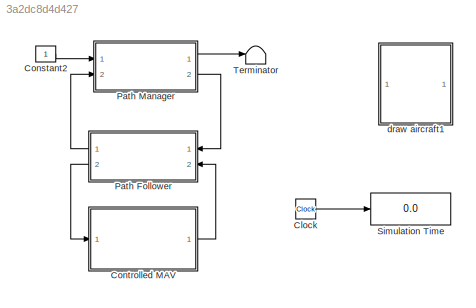
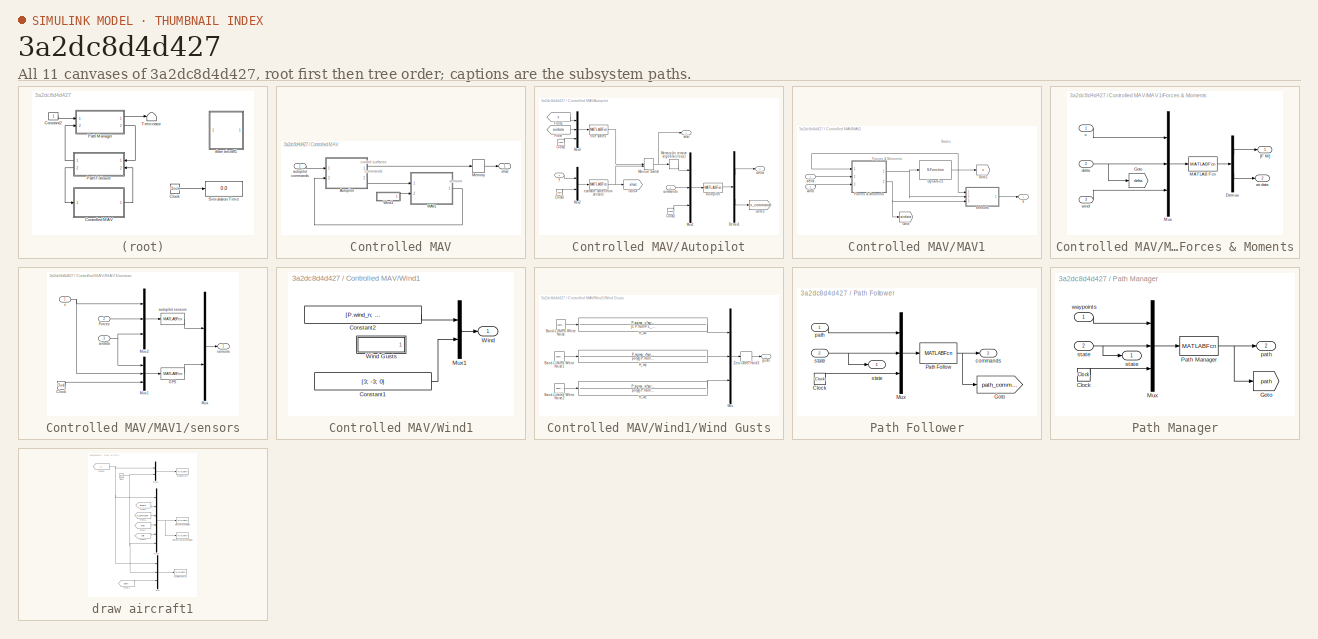
[diagram: thumbnail index - all 11 canvases of the model, root first then tree order]
MODEL slx_3a2dc8d4d427
KIND model
CONFIG AbsTol = auto
CONFIG EnableMultiTasking = on
CONFIG FixedStep = auto
CONFIG InitFcn = param_chap10
CONFIG MaxStep = auto
CONFIG MinStep = auto
CONFIG RelTol = 1e-3
CONFIG SampleTimeConstraint = Unconstrained
CONFIG Solver = ode15s
CONFIG SolverName = ode15s
CONFIG StartTime = 0.0
CONFIG StopTime = 400
BLOCK [Clock] Clock
BLOCK [Constant] Constant2
BLOCK [SubSystem] Controlled MAV
  Ports = [1, 1]
  RequestExecContextInheritance = off
  Variant = off
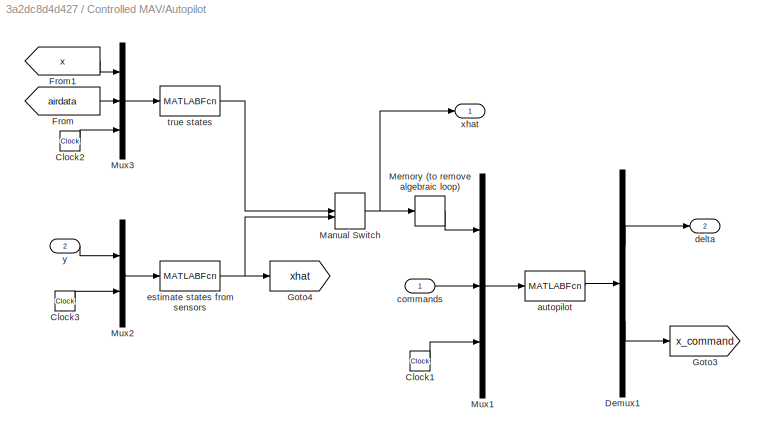
BLOCK [SubSystem] Controlled MAV/Autopilot
  Ports = [2, 2]
  RequestExecContextInheritance = off
  Variant = off
BLOCK [Clock] Controlled MAV/Autopilot/Clock1
BLOCK [Clock] Controlled MAV/Autopilot/Clock2
BLOCK [Clock] Controlled MAV/Autopilot/Clock3
BLOCK [Demux] Controlled MAV/Autopilot/Demux1
  DisplayOption = bar
  Outputs = [4;12]
  Ports = [1, 2]
BLOCK [From] Controlled MAV/Autopilot/From
  GotoTag = airdata
  TagVisibility = global
BLOCK [From] Controlled MAV/Autopilot/From1
  GotoTag = x
  TagVisibility = global
BLOCK [Goto] Controlled MAV/Autopilot/Goto3
  GotoTag = x_command
  TagVisibility = global
BLOCK [Goto] Controlled MAV/Autopilot/Goto4
  GotoTag = xhat
  TagVisibility = global
BLOCK [ManualSwitch] Controlled MAV/Autopilot/Manual Switch
BLOCK [Memory] Controlled MAV/Autopilot/Memory (to remove algebraic loop)
BLOCK [Mux] Controlled MAV/Autopilot/Mux1
  DisplayOption = bar
  Inputs = 3
  Ports = [3, 1]
BLOCK [Mux] Controlled MAV/Autopilot/Mux2
  DisplayOption = bar
  Inputs = 2
  Ports = [2, 1]
BLOCK [Mux] Controlled MAV/Autopilot/Mux3
  DisplayOption = bar
  Inputs = 3
  Ports = [3, 1]
BLOCK [MATLABFcn] Controlled MAV/Autopilot/autopilot
  MATLABFcn = autopilot(u,P)
  OutputDimensions = 4+12
  Ports = [1, 1]
  SampleTime = P.Ts
BLOCK [Inport] Controlled MAV/Autopilot/commands
  IconDisplay = Port number
BLOCK [Outport] Controlled MAV/Autopilot/delta
  IconDisplay = Port number
  Port = 2
BLOCK [MATLABFcn] Controlled MAV/Autopilot/estimate states from sensors
  MATLABFcn = estimate_states(u,P)
  OutputDimensions = 19
  Ports = [1, 1]
  SampleTime = P.Ts
BLOCK [MATLABFcn] Controlled MAV/Autopilot/true states
  MATLABFcn = true_states(u,P)
  OutputDimensions = 19
  Ports = [1, 1]
  SampleTime = P.Ts
BLOCK [Outport] Controlled MAV/Autopilot/xhat
  IconDisplay = Port number
BLOCK [Inport] Controlled MAV/Autopilot/y
  IconDisplay = Port number
  Port = 2
BLOCK [SubSystem] Controlled MAV/MAV1
  Ports = [2, 1]
  RequestExecContextInheritance = off
  Variant = off
BLOCK [S-Function] Controlled MAV/MAV1/Dynamics
  EnableBusSupport = off
  FunctionName = mav_dynamics
  Parameters = P
  Ports = [1, 1]
  SFcnIsStateOwnerBlock = off
  SFunctionDeploymentMode = off
BLOCK [SubSystem] Controlled MAV/MAV1/Forces & Moments
  Ports = [3, 2]
  RequestExecContextInheritance = off
  Variant = off
BLOCK [Demux] Controlled MAV/MAV1/Forces & Moments/Demux
  DisplayOption = bar
  Outputs = [6;6]
  Ports = [1, 2]
BLOCK [Goto] Controlled MAV/MAV1/Forces & Moments/Goto
  GotoTag = delta
  TagVisibility = global
BLOCK [MATLABFcn] Controlled MAV/MAV1/Forces & Moments/MATLAB Fcn
  MATLABFcn = forces_moments(u(1:12),u(13:16),u(17:22),P)
  OutputDimensions = 12
  Ports = [1, 1]
BLOCK [Mux] Controlled MAV/MAV1/Forces & Moments/Mux
  DisplayOption = bar
  Inputs = 3
  Ports = [3, 1]
BLOCK [Outport] Controlled MAV/MAV1/Forces & Moments/[F M]
  IconDisplay = Port number
BLOCK [Outport] Controlled MAV/MAV1/Forces & Moments/air data
  IconDisplay = Port number
  Port = 2
BLOCK [Inport] Controlled MAV/MAV1/Forces & Moments/delta
  IconDisplay = Port number
  Port = 2
BLOCK [Inport] Controlled MAV/MAV1/Forces & Moments/wind
  IconDisplay = Port number
  Port = 3
BLOCK [Inport] Controlled MAV/MAV1/Forces & Moments/x
  IconDisplay = Port number
BLOCK [Goto] Controlled MAV/MAV1/Goto
  GotoTag = airdata
  TagVisibility = global
BLOCK [Goto] Controlled MAV/MAV1/Goto1
  GotoTag = x
  TagVisibility = global
BLOCK [Inport] Controlled MAV/MAV1/delta
  IconDisplay = Port number
BLOCK [SubSystem] Controlled MAV/MAV1/sensors
  Ports = [3, 1]
  RequestExecContextInheritance = off
  Variant = off
BLOCK [Clock] Controlled MAV/MAV1/sensors/Clock
BLOCK [Inport] Controlled MAV/MAV1/sensors/Forces
  IconDisplay = Port number
  Port = 2
BLOCK [MATLABFcn] Controlled MAV/MAV1/sensors/GPS
  MATLABFcn = gps(u,P)
  OutputDimensions = 5
  Ports = [1, 1]
  SampleTime = P.Ts_gps
BLOCK [Mux] Controlled MAV/MAV1/sensors/Mux
  DisplayOption = bar
  Inputs = 2
  Ports = [2, 1]
BLOCK [Mux] Controlled MAV/MAV1/sensors/Mux1
  DisplayOption = bar
  Inputs = 3
  Ports = [3, 1]
BLOCK [Mux] Controlled MAV/MAV1/sensors/Mux2
  DisplayOption = bar
  Inputs = 3
  Ports = [3, 1]
BLOCK [Inport] Controlled MAV/MAV1/sensors/airdata
  IconDisplay = Port number
  Port = 3
BLOCK [MATLABFcn] Controlled MAV/MAV1/sensors/autopilot sensors
  MATLABFcn = sensors(u,P)
  OutputDimensions = 8
  Ports = [1, 1]
  SampleTime = P.Ts
BLOCK [Outport] Controlled MAV/MAV1/sensors/sensors
  IconDisplay = Port number
BLOCK [Inport] Controlled MAV/MAV1/sensors/x
  IconDisplay = Port number
BLOCK [Inport] Controlled MAV/MAV1/wind
  IconDisplay = Port number
  Port = 2
BLOCK [Outport] Controlled MAV/MAV1/y
  IconDisplay = Port number
BLOCK [Memory] Controlled MAV/Memory
BLOCK [SubSystem] Controlled MAV/Wind1
  Ports = [0, 1]
  RequestExecContextInheritance = off
  Variant = off
BLOCK [Constant] Controlled MAV/Wind1/Constant1
  Value = [3; -3; 0]
BLOCK [Constant] Controlled MAV/Wind1/Constant2
  Value = [P.wind_n; P.wind_e; P.wind_d]
BLOCK [Mux] Controlled MAV/Wind1/Mux1
  DisplayOption = bar
  Inputs = 2
  Ports = [2, 1]
BLOCK [Outport] Controlled MAV/Wind1/Wind
  IconDisplay = Port number
BLOCK [SubSystem] Controlled MAV/Wind1/Wind Gusts
  Ports = [0, 1]
  RequestExecContextInheritance = off
  Variant = off
BLOCK [Reference] Controlled MAV/Wind1/Wind Gusts/Band-Limited White Noise  REF=simulink/Sources/Band-Limited
White Noise
  Ports = [0, 1]
  SourceBlock = simulink/Sources/Band-Limited\nWhite Noise
  SourceProductBaseCode = SL
  SourceProductName = Simulink
  SourceType = Band-Limited White Noise.
BLOCK [Reference] Controlled MAV/Wind1/Wind Gusts/Band-Limited White Noise1  REF=simulink/Sources/Band-Limited
White Noise
  Ports = [0, 1]
  SourceBlock = simulink/Sources/Band-Limited\nWhite Noise
  SourceProductBaseCode = SL
  SourceProductName = Simulink
  SourceType = Band-Limited White Noise.
BLOCK [Reference] Controlled MAV/Wind1/Wind Gusts/Band-Limited White Noise2  REF=simulink/Sources/Band-Limited
White Noise
  Ports = [0, 1]
  SourceBlock = simulink/Sources/Band-Limited\nWhite Noise
  SourceProductBaseCode = SL
  SourceProductName = Simulink
  SourceType = Band-Limited White Noise.
BLOCK [TransferFcn] Controlled MAV/Wind1/Wind Gusts/H_wx
  Denominator = [1 P.Va0/P.L_u]
  Numerator = P.sigma_u*sqrt(2*P.Va0/P.L_u)
BLOCK [TransferFcn] Controlled MAV/Wind1/Wind Gusts/H_wy
  Denominator = poly([-P.Va0/P.L_v, -P.Va0/P.L_v])
  Numerator = P.sigma_v*sqrt(3*P.Va0/P.L_v)*[0, 1, P.Va0/sqrt(3)/P.L_v]
BLOCK [TransferFcn] Controlled MAV/Wind1/Wind Gusts/H_wz
  Denominator = poly([-P.Va0/P.L_w, -P.Va0/P.L_w])
  Numerator = P.sigma_w*sqrt(3*P.Va0/P.L_w)*[0, 1, P.Va0/sqrt(3)/P.L_w]
BLOCK [Mux] Controlled MAV/Wind1/Wind Gusts/Mux
  DisplayOption = bar
  Inputs = 3
  Ports = [3, 1]
BLOCK [ZeroOrderHold] Controlled MAV/Wind1/Wind Gusts/Zero-Order Hold3
  SampleTime = P.Ts
BLOCK [Outport] Controlled MAV/Wind1/Wind Gusts/gusts
  IconDisplay = Port number
BLOCK [Inport] Controlled MAV/autopilot commands
  IconDisplay = Port number
BLOCK [Outport] Controlled MAV/xhat
  IconDisplay = Port number
BLOCK [SubSystem] Path Follower
  Ports = [2, 2]
  RequestExecContextInheritance = off
  Variant = off
BLOCK [Clock] Path Follower/Clock
BLOCK [Goto] Path Follower/Goto
  GotoTag = path_command
  TagVisibility = global
BLOCK [Mux] Path Follower/Mux
  DisplayOption = bar
  Inputs = 3
  Ports = [3, 1]
BLOCK [MATLABFcn] Path Follower/Path Follow
  MATLABFcn = path_follow(u,P)
  OutputDimensions = 4
  Ports = [1, 1]
  SampleTime = P.Ts
BLOCK [Outport] Path Follower/commands
  IconDisplay = Port number
  Port = 2
BLOCK [Inport] Path Follower/path
  IconDisplay = Port number
BLOCK [Inport] Path Follower/state
  IconDisplay = Port number
  Port = 2
BLOCK [Outport] Path Follower/state 
  IconDisplay = Port number
BLOCK [SubSystem] Path Manager
  Ports = [2, 2]
  RequestExecContextInheritance = off
  Variant = off
BLOCK [Clock] Path Manager/Clock
BLOCK [Goto] Path Manager/Goto
  GotoTag = path
  TagVisibility = global
BLOCK [Mux] Path Manager/Mux
  DisplayOption = bar
  Inputs = 3
  Ports = [3, 1]
BLOCK [MATLABFcn] Path Manager/Path Manager
  MATLABFcn = path_manager_chap10(u)
  OutputDimensions = 13
  Ports = [1, 1]
  SampleTime = P.Ts
BLOCK [Outport] Path Manager/path
  IconDisplay = Port number
  Port = 2
BLOCK [Inport] Path Manager/state
  IconDisplay = Port number
  Port = 2
BLOCK [Outport] Path Manager/state 
  IconDisplay = Port number
BLOCK [Inport] Path Manager/waypoints
  IconDisplay = Port number
BLOCK [Display] Simulation Time
  Decimation = 1
  Ports = [1]
BLOCK [Terminator] Terminator
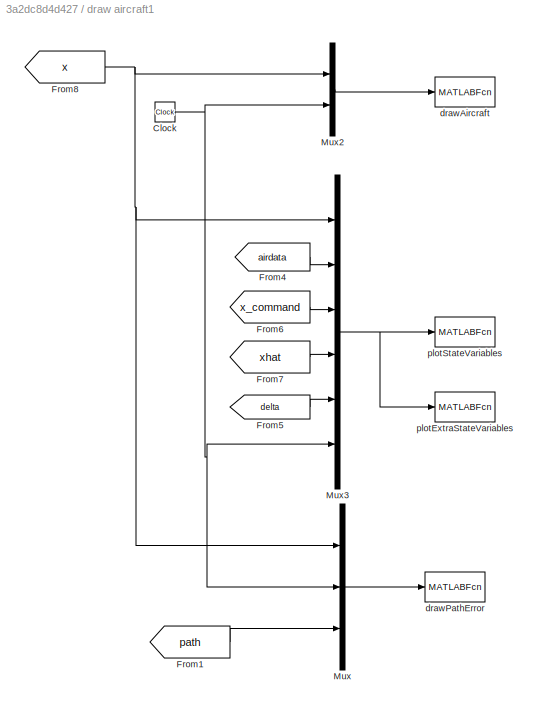
BLOCK [SubSystem] draw aircraft1
  Ports = []
  RequestExecContextInheritance = off
  Variant = off
BLOCK [Clock] draw aircraft1/Clock
BLOCK [From] draw aircraft1/From1
  CloseFcn = tagdialog Close
  GotoTag = path
  TagVisibility = global
BLOCK [From] draw aircraft1/From4
  GotoTag = airdata
  TagVisibility = global
BLOCK [From] draw aircraft1/From5
  CloseFcn = tagdialog Close
  GotoTag = delta
  TagVisibility = global
BLOCK [From] draw aircraft1/From6
  CloseFcn = tagdialog Close
  GotoTag = x_command
  TagVisibility = global
BLOCK [From] draw aircraft1/From7
  CloseFcn = tagdialog Close
  GotoTag = xhat
  TagVisibility = global
BLOCK [From] draw aircraft1/From8
  CloseFcn = tagdialog Close
  GotoTag = x
  TagVisibility = global
BLOCK [Mux] draw aircraft1/Mux
  DisplayOption = bar
  Inputs = 3
  Ports = [3, 1]
BLOCK [Mux] draw aircraft1/Mux2
  DisplayOption = bar
  Inputs = 2
  Ports = [2, 1]
BLOCK [Mux] draw aircraft1/Mux3
  DisplayOption = bar
  Inputs = 6
  Ports = [6, 1]
BLOCK [MATLABFcn] draw aircraft1/drawAircraft
  MATLABFcn = drawAircraft(u)
  OutputDimensions = 0
  Ports = [1]
  SampleTime = 0.1
BLOCK [MATLABFcn] draw aircraft1/drawPathError
  MATLABFcn = drawPathError(u)
  OutputDimensions = 0
  Ports = [1]
  SampleTime = 0.1
BLOCK [MATLABFcn] draw aircraft1/plotExtraStateVariables
  MATLABFcn = plotextramavstatevariables(u,P)
  OutputDimensions = 0
  Ports = [1]
  SampleTime = 0.1
BLOCK [MATLABFcn] draw aircraft1/plotStateVariables
  MATLABFcn = plotmavstatevariables(u)
  OutputDimensions = 0
  Ports = [1]
  SampleTime = 0.1
ANNOTATION Controlled MAV: control surfaces commands
ANNOTATION Controlled MAV: sensors
ANNOTATION Controlled MAV/MAV1: Forces & Moments
ANNOTATION Controlled MAV/MAV1: States
LINE Clock:1 -> Simulation Time:1
LINE Constant2:1 -> Path Manager:1
LINE Controlled MAV/Autopilot/Clock1:1 -> Controlled MAV/Autopilot/Mux1:3
LINE Controlled MAV/Autopilot/Clock2:1 -> Controlled MAV/Autopilot/Mux3:3
LINE Controlled MAV/Autopilot/Clock3:1 -> Controlled MAV/Autopilot/Mux2:2
LINE Controlled MAV/Autopilot/Demux1:1 -> Controlled MAV/Autopilot/delta:1
LINE Controlled MAV/Autopilot/Demux1:2 -> Controlled MAV/Autopilot/Goto3:1
LINE Controlled MAV/Autopilot/From1:1 -> Controlled MAV/Autopilot/Mux3:1
LINE Controlled MAV/Autopilot/From:1 -> Controlled MAV/Autopilot/Mux3:2
NET Controlled MAV/Autopilot/Manual Switch:1 -> Controlled MAV/Autopilot/Memory (to remove algebraic loop):1, Controlled MAV/Autopilot/xhat:1
LINE Controlled MAV/Autopilot/Memory (to remove algebraic loop):1 -> Controlled MAV/Autopilot/Mux1:1
LINE Controlled MAV/Autopilot/Mux1:1 -> Controlled MAV/Autopilot/autopilot:1
LINE Controlled MAV/Autopilot/Mux2:1 -> Controlled MAV/Autopilot/estimate states from sensors:1
LINE Controlled MAV/Autopilot/Mux3:1 -> Controlled MAV/Autopilot/true states:1
LINE Controlled MAV/Autopilot/autopilot:1 -> Controlled MAV/Autopilot/Demux1:1
LINE Controlled MAV/Autopilot/commands:1 -> Controlled MAV/Autopilot/Mux1:2
NET Controlled MAV/Autopilot/estimate states from sensors:1 -> Controlled MAV/Autopilot/Goto4:1, Controlled MAV/Autopilot/Manual Switch:2
LINE Controlled MAV/Autopilot/true states:1 -> Controlled MAV/Autopilot/Manual Switch:1
LINE Controlled MAV/Autopilot/y:1 -> Controlled MAV/Autopilot/Mux2:1
LINE Controlled MAV/Autopilot:1 -> Controlled MAV/Memory:1
LINE Controlled MAV/Autopilot:2 -> Controlled MAV/MAV1:1
NET Controlled MAV/MAV1/Dynamics:1 -> Controlled MAV/MAV1/Forces & Moments:1, Controlled MAV/MAV1/Goto1:1, Controlled MAV/MAV1/sensors:1
LINE Controlled MAV/MAV1/Forces & Moments/Demux:1 -> Controlled MAV/MAV1/Forces & Moments/[F M]:1
LINE Controlled MAV/MAV1/Forces & Moments/Demux:2 -> Controlled MAV/MAV1/Forces & Moments/air data:1
LINE Controlled MAV/MAV1/Forces & Moments/MATLAB Fcn:1 -> Controlled MAV/MAV1/Forces & Moments/Demux:1
LINE Controlled MAV/MAV1/Forces & Moments/Mux:1 -> Controlled MAV/MAV1/Forces & Moments/MATLAB Fcn:1
NET Controlled MAV/MAV1/Forces & Moments/delta:1 -> Controlled MAV/MAV1/Forces & Moments/Goto:1, Controlled MAV/MAV1/Forces & Moments/Mux:2
LINE Controlled MAV/MAV1/Forces & Moments/wind:1 -> Controlled MAV/MAV1/Forces & Moments/Mux:3
LINE Controlled MAV/MAV1/Forces & Moments/x:1 -> Controlled MAV/MAV1/Forces & Moments/Mux:1
NET Controlled MAV/MAV1/Forces & Moments:1 -> Controlled MAV/MAV1/Dynamics:1, Controlled MAV/MAV1/sensors:2
NET Controlled MAV/MAV1/Forces & Moments:2 -> Controlled MAV/MAV1/Goto:1, Controlled MAV/MAV1/sensors:3
LINE Controlled MAV/MAV1/delta:1 -> Controlled MAV/MAV1/Forces & Moments:2
LINE Controlled MAV/MAV1/sensors/Clock:1 -> Controlled MAV/MAV1/sensors/Mux1:3
LINE Controlled MAV/MAV1/sensors/Forces:1 -> Controlled MAV/MAV1/sensors/Mux2:2
LINE Controlled MAV/MAV1/sensors/GPS:1 -> Controlled MAV/MAV1/sensors/Mux:2
LINE Controlled MAV/MAV1/sensors/Mux1:1 -> Controlled MAV/MAV1/sensors/GPS:1
LINE Controlled MAV/MAV1/sensors/Mux2:1 -> Controlled MAV/MAV1/sensors/autopilot sensors:1
LINE Controlled MAV/MAV1/sensors/Mux:1 -> Controlled MAV/MAV1/sensors/sensors:1
NET Controlled MAV/MAV1/sensors/airdata:1 -> Controlled MAV/MAV1/sensors/Mux1:1, Controlled MAV/MAV1/sensors/Mux2:3
LINE Controlled MAV/MAV1/sensors/autopilot sensors:1 -> Controlled MAV/MAV1/sensors/Mux:1
NET Controlled MAV/MAV1/sensors/x:1 -> Controlled MAV/MAV1/sensors/Mux1:2, Controlled MAV/MAV1/sensors/Mux2:1
LINE Controlled MAV/MAV1/sensors:1 -> Controlled MAV/MAV1/y:1
LINE Controlled MAV/MAV1/wind:1 -> Controlled MAV/MAV1/Forces & Moments:3
LINE Controlled MAV/MAV1:1 -> Controlled MAV/Autopilot:2
LINE Controlled MAV/Memory:1 -> Controlled MAV/xhat:1
LINE Controlled MAV/Wind1/Constant1:1 -> Controlled MAV/Wind1/Mux1:2
LINE Controlled MAV/Wind1/Constant2:1 -> Controlled MAV/Wind1/Mux1:1
LINE Controlled MAV/Wind1/Mux1:1 -> Controlled MAV/Wind1/Wind:1
LINE Controlled MAV/Wind1/Wind Gusts/Band-Limited White Noise1:1 -> Controlled MAV/Wind1/Wind Gusts/H_wy:1
LINE Controlled MAV/Wind1/Wind Gusts/Band-Limited White Noise2:1 -> Controlled MAV/Wind1/Wind Gusts/H_wz:1
LINE Controlled MAV/Wind1/Wind Gusts/Band-Limited White Noise:1 -> Controlled MAV/Wind1/Wind Gusts/H_wx:1
LINE Controlled MAV/Wind1/Wind Gusts/H_wx:1 -> Controlled MAV/Wind1/Wind Gusts/Mux:1
LINE Controlled MAV/Wind1/Wind Gusts/H_wy:1 -> Controlled MAV/Wind1/Wind Gusts/Mux:2
LINE Controlled MAV/Wind1/Wind Gusts/H_wz:1 -> Controlled MAV/Wind1/Wind Gusts/Mux:3
LINE Controlled MAV/Wind1/Wind Gusts/Mux:1 -> Controlled MAV/Wind1/Wind Gusts/Zero-Order Hold3:1
LINE Controlled MAV/Wind1/Wind Gusts/Zero-Order Hold3:1 -> Controlled MAV/Wind1/Wind Gusts/gusts:1
LINE Controlled MAV/Wind1:1 -> Controlled MAV/MAV1:2
LINE Controlled MAV/autopilot commands:1 -> Controlled MAV/Autopilot:1
LINE Controlled MAV:1 -> Path Follower:2
LINE Path Follower/Clock:1 -> Path Follower/Mux:3
LINE Path Follower/Mux:1 -> Path Follower/Path Follow:1
NET Path Follower/Path Follow:1 -> Path Follower/Goto:1, Path Follower/commands:1
LINE Path Follower/path:1 -> Path Follower/Mux:1
NET Path Follower/state:1 -> Path Follower/Mux:2, Path Follower/state :1
LINE Path Follower:1 -> Path Manager:2
LINE Path Follower:2 -> Controlled MAV:1
LINE Path Manager/Clock:1 -> Path Manager/Mux:3
LINE Path Manager/Mux:1 -> Path Manager/Path Manager:1
NET Path Manager/Path Manager:1 -> Path Manager/Goto:1, Path Manager/path:1
NET Path Manager/state:1 -> Path Manager/Mux:2, Path Manager/state :1
LINE Path Manager/waypoints:1 -> Path Manager/Mux:1
LINE Path Manager:1 -> Terminator:1
LINE Path Manager:2 -> Path Follower:1
NET draw aircraft1/Clock:1 -> draw aircraft1/Mux2:2, draw aircraft1/Mux3:6, draw aircraft1/Mux:2
LINE draw aircraft1/From1:1 -> draw aircraft1/Mux:3
LINE draw aircraft1/From4:1 -> draw aircraft1/Mux3:2
LINE draw aircraft1/From5:1 -> draw aircraft1/Mux3:5
LINE draw aircraft1/From6:1 -> draw aircraft1/Mux3:3
LINE draw aircraft1/From7:1 -> draw aircraft1/Mux3:4
NET draw aircraft1/From8:1 -> draw aircraft1/Mux2:1, draw aircraft1/Mux3:1, draw aircraft1/Mux:1
LINE draw aircraft1/Mux2:1 -> draw aircraft1/drawAircraft:1
NET draw aircraft1/Mux3:1 -> draw aircraft1/plotExtraStateVariables:1, draw aircraft1/plotStateVariables:1
LINE draw aircraft1/Mux:1 -> draw aircraft1/drawPathError:1
note: NET lines group one-source signal fan-out (src -> all destinations, sorted); 1:1 wires keep LINE
